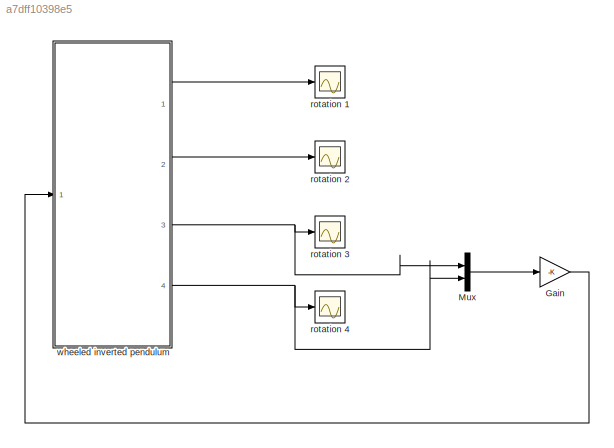
MODEL slx_a7dff10398e5
KIND model
CONFIG AbsTol = auto
CONFIG EnableMultiTasking = off
CONFIG FixedStep = auto
CONFIG MaxStep = auto
CONFIG MinStep = auto
CONFIG RelTol = 1e-3
CONFIG SampleTimeConstraint = Unconstrained
CONFIG Solver = VariableStepAuto
CONFIG SolverName = VariableStepAuto
CONFIG StartTime = 0.0
CONFIG StopTime = 10.0
BLOCK [Gain] Gain
  Gain = -K
  Multiplication = Matrix(K*u)
BLOCK [Mux] Mux
  DisplayOption = bar
  Inputs = 2
  Ports = [2, 1]
BLOCK [Scope] rotation 1
  Floating = off
  NumInputPorts = 1
  Ports = [1]
  ScopeSpecificationString = Simulink.scopes.TimeScopeBlockCfg('CurrentConfiguration', extmgr.ConfigurationSet(extmgr.Configuration('Core','General UI',true),extmgr.Configuration('Core','Source UI',true),extmgr.Configuration('Sources','WiredSimulink',true),extmgr.Configuration('Visuals','Time Domain',true,'SerializedDisplays',{struct('MinYLimReal','-5.94799','MaxYLimReal','0.66089','YLabelReal','','MinYLimMag','0.00000','MaxY...<+1493ch>
BLOCK [Scope] rotation 2
  Floating = off
  NumInputPorts = 1
  Ports = [1]
  ScopeSpecificationString = Simulink.scopes.TimeScopeBlockCfg('CurrentConfiguration', extmgr.ConfigurationSet(extmgr.Configuration('Core','General UI',true),extmgr.Configuration('Core','Source UI',true),extmgr.Configuration('Sources','WiredSimulink',true,'DataLoggingVariableName','ScopeData1'),extmgr.Configuration('Visuals','Time Domain',true,'SerializedDisplays',{struct('MinYLimReal','-38.44976','MaxYLimReal','346.04782','Y...<+1542ch>
BLOCK [Scope] rotation 3
  Floating = off
  NumInputPorts = 1
  Ports = [1]
  ScopeSpecificationString = Simulink.scopes.TimeScopeBlockCfg('CurrentConfiguration', extmgr.ConfigurationSet(extmgr.Configuration('Core','General UI',true),extmgr.Configuration('Core','Source UI',true),extmgr.Configuration('Sources','WiredSimulink',true,'DataLoggingVariableName','ScopeData2'),extmgr.Configuration('Visuals','Time Domain',true,'SerializedDisplays',{struct('MinYLimReal','-0.20928','MaxYLimReal','1.88356','YLab...<+1532ch>
BLOCK [Scope] rotation 4
  Floating = off
  NumInputPorts = 1
  Ports = [1]
  ScopeSpecificationString = Simulink.scopes.TimeScopeBlockCfg('CurrentConfiguration', extmgr.ConfigurationSet(extmgr.Configuration('Core','General UI',true),extmgr.Configuration('Core','Source UI',true),extmgr.Configuration('Sources','WiredSimulink',true,'DataLoggingVariableName','ScopeData3'),extmgr.Configuration('Visuals','Time Domain',true,'SerializedDisplays',{struct('MinYLimReal','-6.31333','MaxYLimReal','6.27407','YLab...<+1506ch>
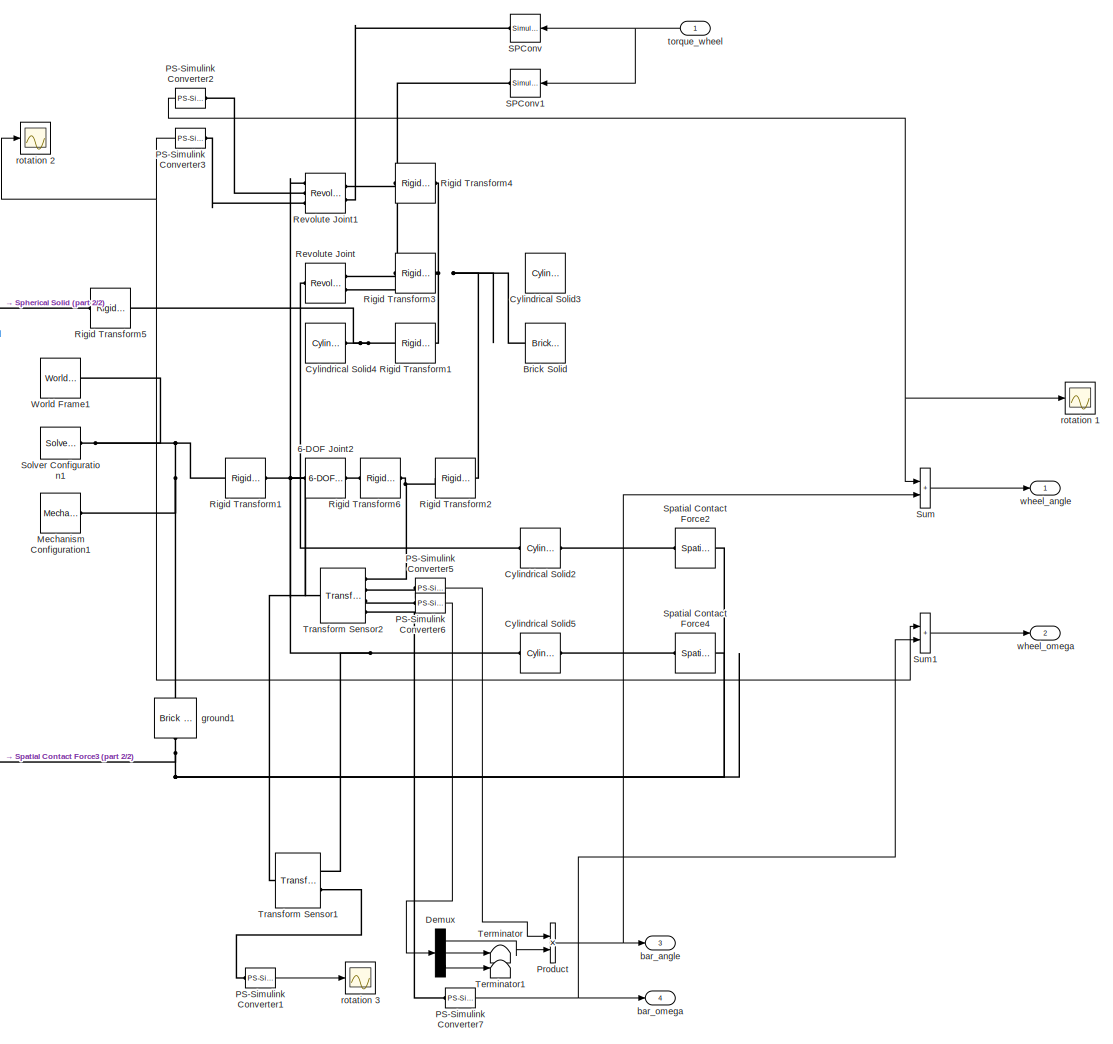
[diagram: wheeled inverted pendulum - part 1/2, most of the canvas]
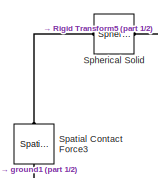
[diagram: wheeled inverted pendulum - part 2/2, middle left region]
BLOCK [SubSystem] wheeled inverted pendulum
  Ports = [1, 4]
  RequestExecContextInheritance = off
BLOCK [Reference] wheeled inverted pendulum/6-DOF Joint2  REF=sm_lib/Joints/6-DOF Joint
  Ports = [0, 0, 0, 0, 0, 1, 1]
  SourceBlock = sm_lib/Joints/6-DOF Joint
  SourceProductBaseCode = MS
  SourceType = 6-DOF Joint
BLOCK [Reference] wheeled inverted pendulum/Brick Solid  REF=sm_lib/Body Elements/Brick Solid
  NameLocation = top
  Ports = [0, 0, 0, 0, 0, 0, 1]
  SourceBlock = sm_lib/Body Elements/Brick Solid
  SourceProductBaseCode = MS
  SourceType = Brick Solid
BLOCK [Reference] wheeled inverted pendulum/Cylindrical Solid2  REF=sm_lib/Body Elements/Cylindrical Solid
  NameLocation = top
  Ports = [0, 0, 0, 0, 0, 1, 1]
  SourceBlock = sm_lib/Body Elements/Cylindrical Solid
  SourceProductBaseCode = MS
  SourceType = Cylindrical Solid
BLOCK [Reference] wheeled inverted pendulum/Cylindrical Solid3  REF=sm_lib/Body Elements/Cylindrical Solid
  NameLocation = top
  Ports = [0, 0, 0, 0, 0, 0, 1]
  SourceBlock = sm_lib/Body Elements/Cylindrical Solid
  SourceProductBaseCode = MS
  SourceType = Cylindrical Solid
BLOCK [Reference] wheeled inverted pendulum/Cylindrical Solid4  REF=sm_lib/Body Elements/Cylindrical Solid
  Ports = [0, 0, 0, 0, 0, 0, 1]
  SourceBlock = sm_lib/Body Elements/Cylindrical Solid
  SourceProductBaseCode = MS
  SourceType = Cylindrical Solid
BLOCK [Reference] wheeled inverted pendulum/Cylindrical Solid5  REF=sm_lib/Body Elements/Cylindrical Solid
  NameLocation = top
  Ports = [0, 0, 0, 0, 0, 1, 1]
  SourceBlock = sm_lib/Body Elements/Cylindrical Solid
  SourceProductBaseCode = MS
  SourceType = Cylindrical Solid
BLOCK [Demux] wheeled inverted pendulum/Demux
  Outputs = 3
  Ports = [1, 3]
BLOCK [Reference] wheeled inverted pendulum/Mechanism Configuration1  REF=sm_lib/Utilities/Mechanism
Configuration
  Ports = [0, 0, 0, 0, 0, 0, 1]
  SourceBlock = sm_lib/Utilities/Mechanism\nConfiguration
  SourceProductBaseCode = MS
  SourceType = Mechanism\nConfiguration
BLOCK [Reference] wheeled inverted pendulum/PS-Simulink Converter1  REF=nesl_utility/PS-Simulink
Converter
  Ports = [0, 1, 0, 0, 0, 1]
  SourceBlock = nesl_utility/PS-Simulink\nConverter
  SourceProductBaseCode = SS
  SourceType = PS-Simulink\nConverter
BLOCK [Reference] wheeled inverted pendulum/PS-Simulink Converter2  REF=nesl_utility/PS-Simulink
Converter
  NameLocation = top
  Ports = [0, 1, 0, 0, 0, 1]
  SourceBlock = nesl_utility/PS-Simulink\nConverter
  SourceProductBaseCode = SS
  SourceType = PS-Simulink\nConverter
BLOCK [Reference] wheeled inverted pendulum/PS-Simulink Converter3  REF=nesl_utility/PS-Simulink
Converter
  NameLocation = top
  Ports = [0, 1, 0, 0, 0, 1]
  SourceBlock = nesl_utility/PS-Simulink\nConverter
  SourceProductBaseCode = SS
  SourceType = PS-Simulink\nConverter
BLOCK [Reference] wheeled inverted pendulum/PS-Simulink Converter5  REF=nesl_utility/PS-Simulink
Converter
  Ports = [0, 1, 0, 0, 0, 1]
  SourceBlock = nesl_utility/PS-Simulink\nConverter
  SourceProductBaseCode = SS
  SourceType = PS-Simulink\nConverter
BLOCK [Reference] wheeled inverted pendulum/PS-Simulink Converter6  REF=nesl_utility/PS-Simulink
Converter
  Ports = [0, 1, 0, 0, 0, 1]
  SourceBlock = nesl_utility/PS-Simulink\nConverter
  SourceProductBaseCode = SS
  SourceType = PS-Simulink\nConverter
BLOCK [Reference] wheeled inverted pendulum/PS-Simulink Converter7  REF=nesl_utility/PS-Simulink
Converter
  Ports = [0, 1, 0, 0, 0, 1]
  SourceBlock = nesl_utility/PS-Simulink\nConverter
  SourceProductBaseCode = SS
  SourceType = PS-Simulink\nConverter
BLOCK [Product] wheeled inverted pendulum/Product
  Ports = [2, 1]
BLOCK [Reference] wheeled inverted pendulum/Revolute Joint  REF=sm_lib/Joints/Revolute Joint
  NameLocation = top
  Ports = [0, 0, 0, 0, 0, 2, 1]
  SourceBlock = sm_lib/Joints/Revolute Joint
  SourceProductBaseCode = MS
  SourceType = Revolute Joint
BLOCK [Reference] wheeled inverted pendulum/Revolute Joint1  REF=sm_lib/Joints/Revolute Joint
  NameLocation = top
  Ports = [0, 0, 0, 0, 0, 2, 3]
  SourceBlock = sm_lib/Joints/Revolute Joint
  SourceProductBaseCode = MS
  SourceType = Revolute Joint
BLOCK [Reference] wheeled inverted pendulum/Rigid Transform1  REF=sm_lib/Frames and
Transforms/Rigid
Transform
  NameLocation = top
  Ports = [0, 0, 0, 0, 0, 1, 1]
  SourceBlock = sm_lib/Frames and\nTransforms/Rigid\nTransform
  SourceProductBaseCode = MS
  SourceType = Rigid\nTransform
BLOCK [Reference] wheeled inverted pendulum/Rigid Transform2  REF=sm_lib/Frames and
Transforms/Rigid
Transform
  Ports = [0, 0, 0, 0, 0, 1, 1]
  SourceBlock = sm_lib/Frames and\nTransforms/Rigid\nTransform
  SourceProductBaseCode = MS
  SourceType = Rigid\nTransform
BLOCK [Reference] wheeled inverted pendulum/Rigid Transform3  REF=sm_lib/Frames and
Transforms/Rigid
Transform
  NameLocation = top
  Ports = [0, 0, 0, 0, 0, 1, 1]
  SourceBlock = sm_lib/Frames and\nTransforms/Rigid\nTransform
  SourceProductBaseCode = MS
  SourceType = Rigid\nTransform
BLOCK [Reference] wheeled inverted pendulum/Rigid Transform4  REF=sm_lib/Frames and
Transforms/Rigid
Transform
  NameLocation = top
  Ports = [0, 0, 0, 0, 0, 1, 1]
  SourceBlock = sm_lib/Frames and\nTransforms/Rigid\nTransform
  SourceProductBaseCode = MS
  SourceType = Rigid\nTransform
BLOCK [Reference] wheeled inverted pendulum/Rigid Transform5  REF=sm_lib/Frames and
Transforms/Rigid
Transform
  NameLocation = top
  Ports = [0, 0, 0, 0, 0, 1, 1]
  SourceBlock = sm_lib/Frames and\nTransforms/Rigid\nTransform
  SourceProductBaseCode = MS
  SourceType = Rigid\nTransform
BLOCK [Reference] wheeled inverted pendulum/Rigid Transform6  REF=sm_lib/Frames and
Transforms/Rigid
Transform
  Ports = [0, 0, 0, 0, 0, 1, 1]
  SourceBlock = sm_lib/Frames and\nTransforms/Rigid\nTransform
  SourceProductBaseCode = MS
  SourceType = Rigid\nTransform
BLOCK [Reference] wheeled inverted pendulum/SPConv  REF=nesl_utility/Simulink-PS
Converter
  NameLocation = top
  Ports = [1, 0, 0, 0, 0, 0, 1]
  SourceBlock = nesl_utility/Simulink-PS\nConverter
  SourceProductBaseCode = SS
  SourceType = Simulink-PS\nConverter
BLOCK [Reference] wheeled inverted pendulum/SPConv1  REF=nesl_utility/Simulink-PS
Converter
  NameLocation = top
  Ports = [1, 0, 0, 0, 0, 0, 1]
  SourceBlock = nesl_utility/Simulink-PS\nConverter
  SourceProductBaseCode = SS
  SourceType = Simulink-PS\nConverter
BLOCK [Reference] wheeled inverted pendulum/Solver Configuration1  REF=nesl_utility/Solver
Configuration
  Ports = [0, 0, 0, 0, 0, 0, 1]
  SourceBlock = nesl_utility/Solver\nConfiguration
  SourceProductBaseCode = SS
  SourceType = Solver\nConfiguration
BLOCK [Reference] wheeled inverted pendulum/Spatial Contact Force2  REF=sm_lib/Forces and
Torques/Spatial
Contact Force
  NameLocation = top
  Ports = [0, 0, 0, 0, 0, 1, 1]
  SourceBlock = sm_lib/Forces and\nTorques/Spatial\nContact Force
  SourceProductBaseCode = MS
  SourceType = Spatial\nContact Force
BLOCK [Reference] wheeled inverted pendulum/Spatial Contact Force3  REF=sm_lib/Forces and
Torques/Spatial
Contact Force
  NameLocation = right
  Ports = [0, 0, 0, 0, 0, 1, 1]
  SourceBlock = sm_lib/Forces and\nTorques/Spatial\nContact Force
  SourceProductBaseCode = MS
  SourceType = Spatial\nContact Force
BLOCK [Reference] wheeled inverted pendulum/Spatial Contact Force4  REF=sm_lib/Forces and
Torques/Spatial
Contact Force
  NameLocation = top
  Ports = [0, 0, 0, 0, 0, 1, 1]
  SourceBlock = sm_lib/Forces and\nTorques/Spatial\nContact Force
  SourceProductBaseCode = MS
  SourceType = Spatial\nContact Force
BLOCK [Reference] wheeled inverted pendulum/Spherical Solid  REF=sm_lib/Body Elements/Spherical Solid
  Ports = [0, 0, 0, 0, 0, 1, 1]
  SourceBlock = sm_lib/Body Elements/Spherical Solid
  SourceProductBaseCode = MS
  SourceType = Spherical Solid
BLOCK [Sum] wheeled inverted pendulum/Sum
  IconShape = rectangular
  Ports = [2, 1]
BLOCK [Sum] wheeled inverted pendulum/Sum1
  IconShape = rectangular
  Ports = [2, 1]
BLOCK [Terminator] wheeled inverted pendulum/Terminator
BLOCK [Terminator] wheeled inverted pendulum/Terminator1
BLOCK [Reference] wheeled inverted pendulum/Transform Sensor1  REF=sm_lib/Frames and
Transforms/Transform
Sensor
  Ports = [0, 0, 0, 0, 0, 1, 2]
  SourceBlock = sm_lib/Frames and\nTransforms/Transform\nSensor
  SourceProductBaseCode = MS
  SourceType = Transform\nSensor
BLOCK [Reference] wheeled inverted pendulum/Transform Sensor2  REF=sm_lib/Frames and
Transforms/Transform
Sensor
  Ports = [0, 0, 0, 0, 0, 1, 4]
  SourceBlock = sm_lib/Frames and\nTransforms/Transform\nSensor
  SourceProductBaseCode = MS
  SourceType = Transform\nSensor
BLOCK [Reference] wheeled inverted pendulum/World Frame1  REF=sm_lib/Frames and
Transforms/World Frame
  Ports = [0, 0, 0, 0, 0, 0, 1]
  SourceBlock = sm_lib/Frames and\nTransforms/World Frame
  SourceProductBaseCode = MS
  SourceType = World Frame
BLOCK [Outport] wheeled inverted pendulum/bar_angle
  Port = 3
BLOCK [Outport] wheeled inverted pendulum/bar_omega
  Port = 4
BLOCK [Reference] wheeled inverted pendulum/ground1  REF=sm_lib/Body Elements/Brick Solid
  NameLocation = right
  Ports = [0, 0, 0, 0, 0, 1, 1]
  SourceBlock = sm_lib/Body Elements/Brick Solid
  SourceProductBaseCode = MS
  SourceType = Brick Solid
BLOCK [Scope] wheeled inverted pendulum/rotation 1
  Floating = off
  NumInputPorts = 1
  Ports = [1]
  ScopeSpecificationString = Simulink.scopes.TimeScopeBlockCfg('CurrentConfiguration', extmgr.ConfigurationSet(extmgr.Configuration('Core','General UI',true),extmgr.Configuration('Core','Source UI',true),extmgr.Configuration('Sources','WiredSimulink',true,'DataLoggingVariableName','ScopeData1'),extmgr.Configuration('Visuals','Time Domain',true,'SerializedDisplays',{struct('MinYLimReal','-7.82783','MaxYLimReal','0.86976','YLab...<+1514ch>
BLOCK [Scope] wheeled inverted pendulum/rotation 2
  Floating = off
  NumInputPorts = 1
  Ports = [1]
  ScopeSpecificationString = Simulink.scopes.TimeScopeBlockCfg('CurrentConfiguration', extmgr.ConfigurationSet(extmgr.Configuration('Core','General UI',true),extmgr.Configuration('Core','Source UI',true),extmgr.Configuration('Sources','WiredSimulink',true,'DataLoggingVariableName','ScopeData2'),extmgr.Configuration('Visuals','Time Domain',true,'SerializedDisplays',{struct('MinYLimReal','-13.98431','MaxYLimReal','3.50549','YLa...<+1531ch>
BLOCK [Scope] wheeled inverted pendulum/rotation 3
  Floating = off
  NumInputPorts = 1
  Ports = [1]
  ScopeSpecificationString = Simulink.scopes.TimeScopeBlockCfg('CurrentConfiguration', extmgr.ConfigurationSet(extmgr.Configuration('Core','General UI',true),extmgr.Configuration('Core','Source UI',true),extmgr.Configuration('Sources','WiredSimulink',true,'DataLoggingVariableName','ScopeData3'),extmgr.Configuration('Visuals','Time Domain',true,'SerializedDisplays',{struct('MinYLimReal','-0.09894','MaxYLimReal','0.89048','YLab...<+1514ch>
BLOCK [Inport] wheeled inverted pendulum/torque_wheel
  NameLocation = top
BLOCK [Outport] wheeled inverted pendulum/wheel_angle
BLOCK [Outport] wheeled inverted pendulum/wheel_omega
  Port = 2
LINE Gain:1 -> wheeled inverted pendulum:1
LINE Mux:1 -> Gain:1
LINE wheeled inverted pendulum/Demux:1 -> wheeled inverted pendulum/Product:2
LINE wheeled inverted pendulum/Demux:2 -> wheeled inverted pendulum/Terminator:1
LINE wheeled inverted pendulum/Demux:3 -> wheeled inverted pendulum/Terminator1:1
LINE wheeled inverted pendulum/PS-Simulink Converter1:1 -> wheeled inverted pendulum/rotation 3:1
NET wheeled inverted pendulum/PS-Simulink Converter2:1 -> wheeled inverted pendulum/Sum:1, wheeled inverted pendulum/rotation 1:1
NET wheeled inverted pendulum/PS-Simulink Converter3:1 -> wheeled inverted pendulum/Sum1:1, wheeled inverted pendulum/rotation 2:1
LINE wheeled inverted pendulum/PS-Simulink Converter5:1 -> wheeled inverted pendulum/Product:1
LINE wheeled inverted pendulum/PS-Simulink Converter6:1 -> wheeled inverted pendulum/Demux:1
NET wheeled inverted pendulum/PS-Simulink Converter7:1 -> wheeled inverted pendulum/Sum1:2, wheeled inverted pendulum/bar_omega:1
NET wheeled inverted pendulum/Product:1 -> wheeled inverted pendulum/Sum:2, wheeled inverted pendulum/bar_angle:1
LINE wheeled inverted pendulum/Sum1:1 -> wheeled inverted pendulum/wheel_omega:1
LINE wheeled inverted pendulum/Sum:1 -> wheeled inverted pendulum/wheel_angle:1
NET wheeled inverted pendulum/torque_wheel:1 -> wheeled inverted pendulum/SPConv1:1, wheeled inverted pendulum/SPConv:1
LINE wheeled inverted pendulum:1 -> rotation 1:1
LINE wheeled inverted pendulum:2 -> rotation 2:1
NET wheeled inverted pendulum:3 -> Mux:1, rotation 3:1
NET wheeled inverted pendulum:4 -> Mux:2, rotation 4:1
PNET net1: wheeled inverted pendulum/6-DOF Joint2:LConn1 -- wheeled inverted pendulum/Cylindrical Solid4:RConn1 -- wheeled inverted pendulum/Rigid Transform1:RConn1 -- wheeled inverted pendulum/Rigid Transform5:LConn1 -- wheeled inverted pendulum/Transform Sensor1:LConn1 -- wheeled inverted pendulum/Transform Sensor2:LConn1
PLINE wheeled inverted pendulum/6-DOF Joint2:RConn1 -- wheeled inverted pendulum/Rigid Transform6:LConn1
PNET net2: wheeled inverted pendulum/Brick Solid:RConn1 -- wheeled inverted pendulum/Mechanism Configuration1:RConn1 -- wheeled inverted pendulum/Rigid Transform1:LConn1 -- wheeled inverted pendulum/Rigid Transform2:RConn1 -- wheeled inverted pendulum/Rigid Transform3:LConn1 -- wheeled inverted pendulum/Rigid Transform4:LConn1 -- wheeled inverted pendulum/Solver Configuration1:RConn1 -- wheeled inverted pendulum/World Frame1:RConn1 -- wheeled inverted pendulum/ground1:RConn1
PLINE wheeled inverted pendulum/Cylindrical Solid2:LConn1 -- wheeled inverted pendulum/Spatial Contact Force2:RConn1
PLINE wheeled inverted pendulum/Cylindrical Solid2:RConn1 -- wheeled inverted pendulum/Revolute Joint:RConn1
PLINE wheeled inverted pendulum/Cylindrical Solid5:LConn1 -- wheeled inverted pendulum/Spatial Contact Force4:RConn1
PNET net3: wheeled inverted pendulum/Cylindrical Solid5:RConn1 -- wheeled inverted pendulum/Revolute Joint1:RConn1 -- wheeled inverted pendulum/Transform Sensor1:RConn1
PLINE wheeled inverted pendulum/PS-Simulink Converter1:LConn1 -- wheeled inverted pendulum/Transform Sensor1:RConn2
PLINE wheeled inverted pendulum/PS-Simulink Converter2:LConn1 -- wheeled inverted pendulum/Revolute Joint1:RConn2
PLINE wheeled inverted pendulum/PS-Simulink Converter3:LConn1 -- wheeled inverted pendulum/Revolute Joint1:RConn3
PLINE wheeled inverted pendulum/PS-Simulink Converter5:LConn1 -- wheeled inverted pendulum/Transform Sensor2:RConn2
PLINE wheeled inverted pendulum/PS-Simulink Converter6:LConn1 -- wheeled inverted pendulum/Transform Sensor2:RConn3
PLINE wheeled inverted pendulum/PS-Simulink Converter7:LConn1 -- wheeled inverted pendulum/Transform Sensor2:RConn4
PLINE wheeled inverted pendulum/Revolute Joint1:LConn1 -- wheeled inverted pendulum/Rigid Transform4:RConn1
PLINE wheeled inverted pendulum/Revolute Joint1:LConn2 -- wheeled inverted pendulum/SPConv:RConn1
PLINE wheeled inverted pendulum/Revolute Joint:LConn1 -- wheeled inverted pendulum/Rigid Transform3:RConn1
PLINE wheeled inverted pendulum/Revolute Joint:LConn2 -- wheeled inverted pendulum/SPConv1:RConn1
PNET net4: wheeled inverted pendulum/Rigid Transform2:LConn1 -- wheeled inverted pendulum/Rigid Transform6:RConn1 -- wheeled inverted pendulum/Transform Sensor2:RConn1
PLINE wheeled inverted pendulum/Rigid Transform5:RConn1 -- wheeled inverted pendulum/Spherical Solid:RConn1
PNET net5: wheeled inverted pendulum/Spatial Contact Force2:LConn1 -- wheeled inverted pendulum/Spatial Contact Force3:LConn1 -- wheeled inverted pendulum/Spatial Contact Force4:LConn1 -- wheeled inverted pendulum/ground1:LConn1
PLINE wheeled inverted pendulum/Spatial Contact Force3:RConn1 -- wheeled inverted pendulum/Spherical Solid:LConn1
note: NET lines group one-source signal fan-out (src -> all destinations, sorted); 1:1 wires keep LINE; PNET lines group multi-terminal physical nets as a canonical sorted terminal list (undirected conserving connections); 2-terminal nets keep the pairwise PLINE form
